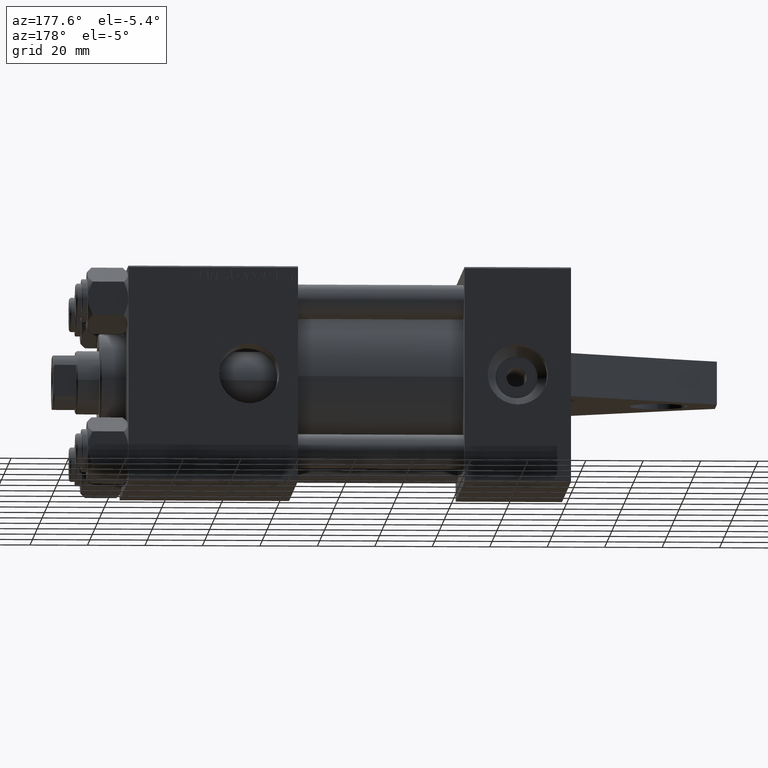
[diagram: clean part render]
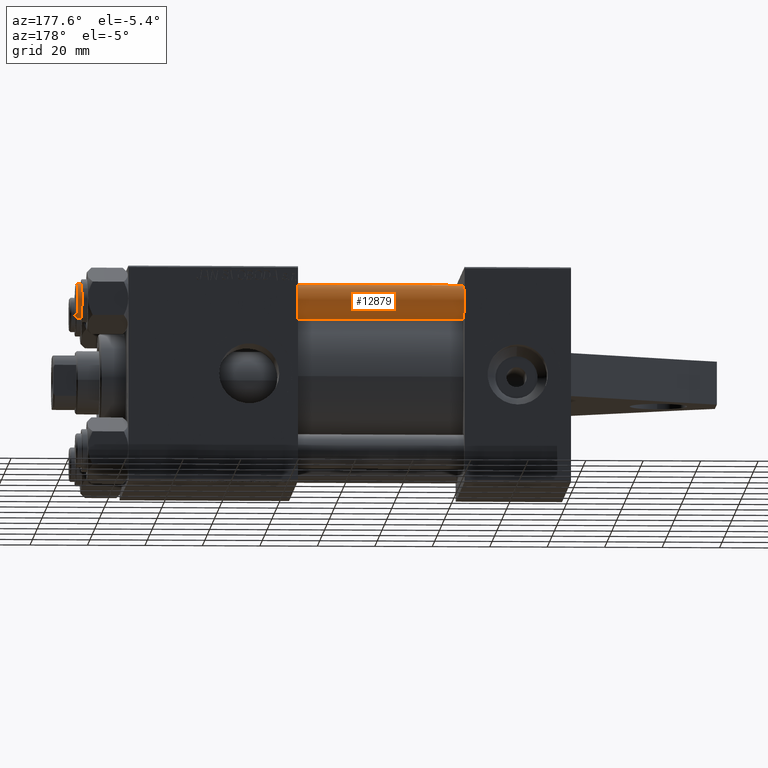
[diagram: same view with one face highlighted and labeled with its STEP entity id]
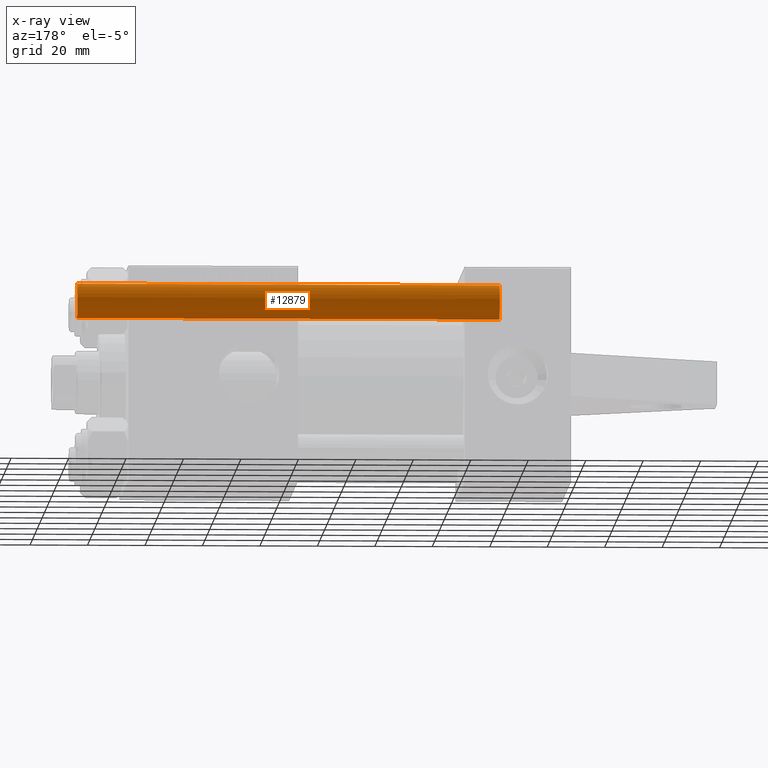
[diagram: x-ray of the same camera — body ghosted, the highlighted face saturated]
A machine part, auxiliary view. The second image highlights one B-rep face of the part: STEP entity #12879.
The next image is the same camera in x-ray: the body ghosted, the highlighted face saturated — about 0% of this face is hidden behind the body in this view.
In plain terms, the highlighted cylindrical surface (edge-blend (fillet) strip) has radius 6 mm, axis along (-1, 0, -0).
Its self-contained STEP definition (entity closure, byte-faithful):
#635 = VECTOR ( 'NONE', #35977, 1000.000000000000000 ) ;
#878 = EDGE_CURVE ( 'NONE', #16845, #17661, #32420, .T. ) ;
#1601 = EDGE_LOOP ( 'NONE', ( #39216, #7321, #29585, #5447 ) ) ;
#4799 = DIRECTION ( 'NONE',  ( 0.000000000000000000, 0.000000000000000000, -1.000000000000000000 ) ) ;
#5447 = ORIENTED_EDGE ( 'NONE', *, *, #878, .F. ) ;
#6774 = CARTESIAN_POINT ( 'NONE',  ( 6.000000000000000888, 7.347880794884120722E-16, 0.5000000000000281997 ) ) ;
#7321 = ORIENTED_EDGE ( 'NONE', *, *, #45967, .T. ) ;
#8518 = DIRECTION ( 'NONE',  ( 1.000000000000000000, 0.000000000000000000, 0.000000000000000000 ) ) ;
#8794 = CARTESIAN_POINT ( 'NONE',  ( -6.000000000000000888, 0.000000000000000000, 147.5000000000000000 ) ) ;
#10807 = EDGE_CURVE ( 'NONE', #12611, #17661, #20713, .T. ) ;
#12171 = VERTEX_POINT ( 'NONE', #12914 ) ;
#12272 = VECTOR ( 'NONE', #35914, 1000.000000000000000 ) ;
#12611 = VERTEX_POINT ( 'NONE', #6774 ) ;
#12879 = ADVANCED_FACE ( 'NONE', ( #21781 ), #25731, .T. ) ;
#12914 = CARTESIAN_POINT ( 'NONE',  ( 6.000000000000000888, 7.347880794884120722E-16, 147.5000000000000000 ) ) ;
#15778 = CARTESIAN_POINT ( 'NONE',  ( 0.000000000000000000, 0.000000000000000000, 0.5000000000000281997 ) ) ;
#16845 = VERTEX_POINT ( 'NONE', #8794 ) ;
#17605 = LINE ( 'NONE', #31797, #635 ) ;
#17661 = VERTEX_POINT ( 'NONE', #32107 ) ;
#18777 = CARTESIAN_POINT ( 'NONE',  ( 0.000000000000000000, 0.000000000000000000, 147.5000000000000000 ) ) ;
#18805 = EDGE_CURVE ( 'NONE', #16845, #12171, #26460, .T. ) ;
#20713 = CIRCLE ( 'NONE', #26674, 6.000000000000000888 ) ;
#21781 = FACE_OUTER_BOUND ( 'NONE', #1601, .T. ) ;
#25716 = AXIS2_PLACEMENT_3D ( 'NONE', #18777, #4799, #8518 ) ;
#25731 = CYLINDRICAL_SURFACE ( 'NONE', #42239, 6.000000000000000888 ) ;
#26460 = CIRCLE ( 'NONE', #25716, 6.000000000000000888 ) ;
#26674 = AXIS2_PLACEMENT_3D ( 'NONE', #15778, #36939, #29963 ) ;
#29444 = CARTESIAN_POINT ( 'NONE',  ( 0.000000000000000000, 0.000000000000000000, 148.0000000000000000 ) ) ;
#29585 = ORIENTED_EDGE ( 'NONE', *, *, #10807, .T. ) ;
#29963 = DIRECTION ( 'NONE',  ( 1.000000000000000000, 0.000000000000000000, 0.000000000000000000 ) ) ;
#31797 = CARTESIAN_POINT ( 'NONE',  ( 6.000000000000000888, 7.347880794884120722E-16, 148.0000000000000000 ) ) ;
#32038 = DIRECTION ( 'NONE',  ( -1.000000000000000000, 0.000000000000000000, 0.000000000000000000 ) ) ;
#32107 = CARTESIAN_POINT ( 'NONE',  ( -6.000000000000000888, 0.000000000000000000, 0.5000000000000281997 ) ) ;
#32420 = LINE ( 'NONE', #43365, #12272 ) ;
#32724 = DIRECTION ( 'NONE',  ( -0.000000000000000000, -0.000000000000000000, -1.000000000000000000 ) ) ;
#35914 = DIRECTION ( 'NONE',  ( -0.000000000000000000, -0.000000000000000000, -1.000000000000000000 ) ) ;
#35977 = DIRECTION ( 'NONE',  ( -0.000000000000000000, -0.000000000000000000, -1.000000000000000000 ) ) ;
#36939 = DIRECTION ( 'NONE',  ( -0.000000000000000000, -0.000000000000000000, 1.000000000000000000 ) ) ;
#39216 = ORIENTED_EDGE ( 'NONE', *, *, #18805, .T. ) ;
#42239 = AXIS2_PLACEMENT_3D ( 'NONE', #29444, #32724, #32038 ) ;
#43365 = CARTESIAN_POINT ( 'NONE',  ( -6.000000000000000888, 0.000000000000000000, 148.0000000000000000 ) ) ;
#45967 = EDGE_CURVE ( 'NONE', #12171, #12611, #17605, .T. ) ;